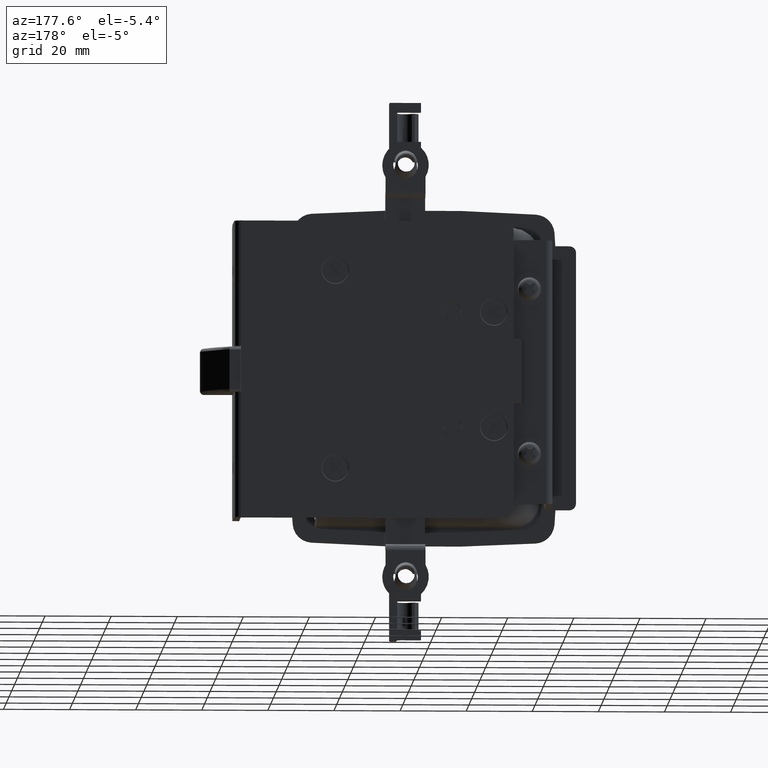
[diagram: clean part render]
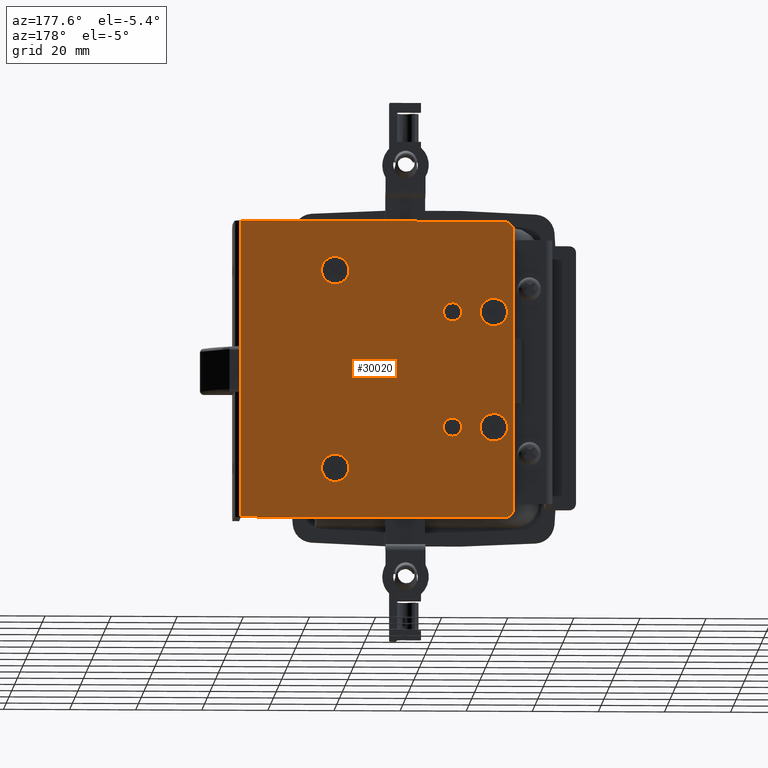
[diagram: same view with one face highlighted and labeled with its STEP entity id]
A machine part, auxiliary view. The second image highlights one B-rep face of the part: STEP entity #30020.
In plain terms, the highlighted face is a freeform B-spline surface patch.
Its self-contained STEP definition (entity closure, byte-faithful):
#23505=CARTESIAN_POINT('',(-5.472486631501899,-4.510281E-017,-19.357573613057092));
#23506=VERTEX_POINT('',#23505);
#23512=CARTESIAN_POINT('',(-7.499999999999770,0.0,-20.249700000000001));
#23513=VERTEX_POINT('',#23512);
#23514=CARTESIAN_POINT('',(-5.472486631501899,-4.510281E-017,-19.357573613057092));
#23515=CARTESIAN_POINT('',(-5.680941984797982,-4.046564E-017,-19.585330832700819));
#23516=CARTESIAN_POINT('',(-6.118546320677543,-3.073097E-017,-19.925035389163241));
#23517=CARTESIAN_POINT('',(-6.835059751756681,-1.479185E-017,-20.196860414906912));
#23518=CARTESIAN_POINT('',(-7.286263966420726,-4.754640E-018,-20.249735390223321));
#23519=CARTESIAN_POINT('',(-7.499999999999770,0.0,-20.249700000000001));
#23520=B_SPLINE_CURVE_WITH_KNOTS('',3,(#23514,#23515,#23516,#23517,#23518,#23519),.UNSPECIFIED.,.F.,.U.,(4,1,1,4),(0.000000062799684,0.926225635221077,1.638677312844255,2.279900507934246),.UNSPECIFIED.);
#23521=EDGE_CURVE('',#23506,#23513,#23520,.T.);
#23523=CARTESIAN_POINT('',(-10.249999999997520,0.0,-17.499696480036189));
#23524=VERTEX_POINT('',#23523);
#23525=CARTESIAN_POINT('',(-7.499999999999770,0.0,-20.249700000000001));
#23526=CARTESIAN_POINT('',(-7.860035991868466,0.0,-20.250074583768519));
#23527=CARTESIAN_POINT('',(-8.467178875843493,0.0,-20.128651152216069));
#23528=CARTESIAN_POINT('',(-9.192947344478831,0.0,-19.705569581635402));
#23529=CARTESIAN_POINT('',(-9.705862296805305,0.0,-19.192636372744200));
#23530=CARTESIAN_POINT('',(-10.128996501319580,0.0,-18.466892904406219));
#23531=CARTESIAN_POINT('',(-10.250331783588470,0.0,-17.859719650200908));
#23532=CARTESIAN_POINT('',(-10.249999999997520,0.0,-17.499696480036189));
#23533=B_SPLINE_CURVE_WITH_KNOTS('',3,(#23525,#23526,#23527,#23528,#23529,#23530,#23531,#23532),.UNSPECIFIED.,.F.,.U.,(4,1,1,1,1,4),(0.000000283196409,1.079950282336486,1.822422684277389,2.497377873439771,3.239850283296648,4.319800280899330),.UNSPECIFIED.);
#23534=EDGE_CURVE('',#23513,#23524,#23533,.T.);
#23536=CARTESIAN_POINT('',(-7.499999999999770,0.0,-14.749700000000001));
#23537=VERTEX_POINT('',#23536);
#23538=CARTESIAN_POINT('',(-10.249999999997520,0.0,-17.499696480036189));
#23539=CARTESIAN_POINT('',(-10.250330896217660,0.0,-17.139664854094839));
#23540=CARTESIAN_POINT('',(-10.137974284353000,0.0,-16.577488721556971));
#23541=CARTESIAN_POINT('',(-9.777590385866075,0.0,-15.923146016261100));
#23542=CARTESIAN_POINT('',(-9.334691406532068,0.0,-15.409515099027180));
#23543=CARTESIAN_POINT('',(-8.602025208140598,0.0,-14.906638540702380));
#23544=CARTESIAN_POINT('',(-7.905061262308764,0.0,-14.749094515283479));
#23545=CARTESIAN_POINT('',(-7.499999999999770,0.0,-14.749700000000001));
#23546=B_SPLINE_CURVE_WITH_KNOTS('',3,(#23538,#23539,#23540,#23541,#23542,#23543,#23544,#23545),.UNSPECIFIED.,.F.,.U.,(4,1,1,1,1,4),(0.000000288013817,1.079949294540860,1.687458690028251,2.227355565950611,3.104851869589282,4.319796312980730),.UNSPECIFIED.);
#23547=EDGE_CURVE('',#23524,#23537,#23546,.T.);
#23549=CARTESIAN_POINT('',(-5.529210470753685,-4.259142E-017,-15.581762620091441));
#23550=VERTEX_POINT('',#23549);
#23551=CARTESIAN_POINT('',(-7.499999999999770,0.0,-14.749700000000001));
#23552=CARTESIAN_POINT('',(-7.202430622155690,-6.430876E-018,-14.749542032343010));
#23553=CARTESIAN_POINT('',(-6.721909589065780,-1.681558E-017,-14.828490905933361));
#23554=CARTESIAN_POINT('',(-6.051169448850877,-3.131118E-017,-15.131686121267210));
#23555=CARTESIAN_POINT('',(-5.704738513070666,-3.879803E-017,-15.401262920871110));
#23556=CARTESIAN_POINT('',(-5.529210470753685,-4.259142E-017,-15.581762620091441));
#23557=B_SPLINE_CURVE_WITH_KNOTS('',3,(#23551,#23552,#23553,#23554,#23555,#23556),.UNSPECIFIED.,.F.,.U.,(4,1,1,4),(0.000000074838097,0.892662888378631,1.441958870254471,2.197274934110382),.UNSPECIFIED.);
#23558=EDGE_CURVE('',#23537,#23550,#23557,.T.);
#23593=CARTESIAN_POINT('',(-4.750000000002022,0.0,-17.499703519963809));
#23594=VERTEX_POINT('',#23593);
#23595=CARTESIAN_POINT('',(-5.529210470753685,-4.259142E-017,-15.581762620091441));
#23596=CARTESIAN_POINT('',(-5.328640277402249,-3.801901E-017,-15.787663929636359));
#23597=CARTESIAN_POINT('',(-5.057649333791258,-2.949162E-017,-16.171662160821139));
#23598=CARTESIAN_POINT('',(-4.806115814134096,-1.472821E-017,-16.836475496202851));
#23599=CARTESIAN_POINT('',(-4.749915092741254,-5.400935E-018,-17.256493299540232));
#23600=CARTESIAN_POINT('',(-4.750000000002022,0.0,-17.499703519963809));
#23601=B_SPLINE_CURVE_WITH_KNOTS('',3,(#23595,#23596,#23597,#23598,#23599,#23600),.UNSPECIFIED.,.F.,.U.,(4,1,1,4),(0.000000063100278,0.862294271851819,1.392905366026415,2.122526288423669),.UNSPECIFIED.);
#23602=EDGE_CURVE('',#23550,#23594,#23601,.T.);
#23604=CARTESIAN_POINT('',(-4.750000000002022,0.0,-17.499703519963809));
#23605=CARTESIAN_POINT('',(-4.749609137533909,-8.770322E-018,-17.860969840347220));
#23606=CARTESIAN_POINT('',(-4.886041539235610,-2.526955E-017,-18.540604634061278));
#23607=CARTESIAN_POINT('',(-5.256991006620507,-3.940064E-017,-19.122690728435870));
#23608=CARTESIAN_POINT('',(-5.472486631501899,-4.510281E-017,-19.357573613057092));
#23609=B_SPLINE_CURVE_WITH_KNOTS('',3,(#23604,#23605,#23606,#23607,#23608),.UNSPECIFIED.,.F.,.U.,(4,1,4),(0.000000069791588,1.083674423462897,2.039895959424957),.UNSPECIFIED.);
#23610=EDGE_CURVE('',#23594,#23506,#23609,.T.);
#23699=CARTESIAN_POINT('',(-5.472486631501900,-4.510281E-017,15.642126386942920));
#23700=VERTEX_POINT('',#23699);
#23706=CARTESIAN_POINT('',(-7.499999999999770,0.0,14.750000000000000));
#23707=VERTEX_POINT('',#23706);
#23708=CARTESIAN_POINT('',(-5.472486631501900,-4.510281E-017,15.642126386942920));
#23709=CARTESIAN_POINT('',(-5.744831175569122,-3.904440E-017,15.343941314839331));
#23710=CARTESIAN_POINT('',(-6.384111851932845,-2.482336E-017,14.899891189947979));
#23711=CARTESIAN_POINT('',(-7.143715967153645,-7.925675E-018,14.749623576210601));
#23712=CARTESIAN_POINT('',(-7.499999999999770,0.0,14.750000000000000));
#23713=B_SPLINE_CURVE_WITH_KNOTS('',3,(#23708,#23709,#23710,#23711,#23712),.UNSPECIFIED.,.F.,.U.,(4,1,4),(0.000000062799576,1.211185354845015,2.279900507934234),.UNSPECIFIED.);
#23714=EDGE_CURVE('',#23700,#23707,#23713,.T.);
#23716=CARTESIAN_POINT('',(-10.249999999997520,0.0,17.500003519963808));
#23717=VERTEX_POINT('',#23716);
#23718=CARTESIAN_POINT('',(-7.499999999999770,0.0,14.750000000000000));
#23719=CARTESIAN_POINT('',(-7.860029752854908,0.0,14.749680237382730));
#23720=CARTESIAN_POINT('',(-8.422190272930868,0.0,14.862035356169050));
#23721=CARTESIAN_POINT('',(-9.195662890498952,0.0,15.287806628945740));
#23722=CARTESIAN_POINT('',(-9.712235413413785,0.0,15.804312088907251));
#23723=CARTESIAN_POINT('',(-10.137904777721911,0.0,16.577828111223109));
#23724=CARTESIAN_POINT('',(-10.250380217828789,0.0,17.139962327563008));
#23725=CARTESIAN_POINT('',(-10.249999999997520,0.0,17.500003519963808));
#23726=B_SPLINE_CURVE_WITH_KNOTS('',3,(#23718,#23719,#23720,#23721,#23722,#23723,#23724,#23725),.UNSPECIFIED.,.F.,.U.,(4,1,1,1,1,4),(0.000000283195729,1.079950282336099,1.687460235529490,2.632340329644946,3.239850283296582,4.319800280899344),.UNSPECIFIED.);
#23727=EDGE_CURVE('',#23707,#23717,#23726,.T.);
#23729=CARTESIAN_POINT('',(-7.499999999999770,0.0,20.250000000000000));
#23730=VERTEX_POINT('',#23729);
#23731=CARTESIAN_POINT('',(-10.249999999997520,0.0,17.500003519963808));
#23732=CARTESIAN_POINT('',(-10.250370862797890,0.0,17.860016034753428));
#23733=CARTESIAN_POINT('',(-10.120011878550750,0.0,18.512231172253600));
#23734=CARTESIAN_POINT('',(-9.606067841612504,0.0,19.346439696946149));
#23735=CARTESIAN_POINT('',(-8.952985952855872,0.0,19.882321722834451));
#23736=CARTESIAN_POINT('',(-8.219899137543594,0.0,20.185765916516200));
#23737=CARTESIAN_POINT('',(-7.747485518898707,0.0,20.250087739473329));
#23738=CARTESIAN_POINT('',(-7.499999999999770,0.0,20.250000000000000));
#23739=B_SPLINE_CURVE_WITH_KNOTS('',3,(#23731,#23732,#23733,#23734,#23735,#23736,#23737,#23738),.UNSPECIFIED.,.F.,.U.,(4,1,1,1,1,4),(0.000000288011730,1.079949294539246,1.957458397787989,2.902342867264029,3.577351743982170,4.319796312980733),.UNSPECIFIED.);
#23740=EDGE_CURVE('',#23717,#23730,#23739,.T.);
#23742=CARTESIAN_POINT('',(-5.529210470753686,-4.259142E-017,19.417937379908569));
#23743=VERTEX_POINT('',#23742);
#23744=CARTESIAN_POINT('',(-7.499999999999770,0.0,20.250000000000000));
#23745=CARTESIAN_POINT('',(-7.202434918576564,-6.430783E-018,20.250170789796140));
#23746=CARTESIAN_POINT('',(-6.676123271580525,-1.780509E-017,20.163709400202318));
#23747=CARTESIAN_POINT('',(-6.011314409270401,-3.217251E-017,19.842985666964179));
#23748=CARTESIAN_POINT('',(-5.672854102828280,-3.948709E-017,19.565581875310091));
#23749=CARTESIAN_POINT('',(-5.529210470753686,-4.259142E-017,19.417937379908569));
#23750=B_SPLINE_CURVE_WITH_KNOTS('',3,(#23744,#23745,#23746,#23747,#23748,#23749),.UNSPECIFIED.,.F.,.U.,(4,1,1,4),(0.000000074837823,0.892662888378472,1.579287328143697,2.197274934110374),.UNSPECIFIED.);
#23751=EDGE_CURVE('',#23730,#23743,#23750,.T.);
#23786=CARTESIAN_POINT('',(-4.750000000002022,0.0,17.499996480036181));
#23787=VERTEX_POINT('',#23786);
#23788=CARTESIAN_POINT('',(-5.529210470753686,-4.259142E-017,19.417937379908569));
#23789=CARTESIAN_POINT('',(-5.390425771269005,-3.942497E-017,19.275348250870959));
#23790=CARTESIAN_POINT('',(-5.102813540110521,-3.125295E-017,18.907352608330420));
#23791=CARTESIAN_POINT('',(-4.817838239538065,-1.669295E-017,18.251698814652912));
#23792=CARTESIAN_POINT('',(-4.749943413434801,-5.400784E-018,17.743199873075810));
#23793=CARTESIAN_POINT('',(-4.750000000002022,0.0,17.499996480036181));
#23794=B_SPLINE_CURVE_WITH_KNOTS('',3,(#23788,#23789,#23790,#23791,#23792,#23793),.UNSPECIFIED.,.F.,.U.,(4,1,1,4),(0.000000063100825,0.596964214172490,1.392905366026495,2.122526288423670),.UNSPECIFIED.);
#23795=EDGE_CURVE('',#23743,#23787,#23794,.T.);
#23797=CARTESIAN_POINT('',(-4.750000000002022,0.0,17.499996480036181));
#23798=CARTESIAN_POINT('',(-4.749786873970688,-7.738461E-018,17.181234467804789));
#23799=CARTESIAN_POINT('',(-4.869597758459131,-2.424082E-017,16.501470938452400));
#23800=CARTESIAN_POINT('',(-5.228113096630768,-3.864311E-017,15.908213669309060));
#23801=CARTESIAN_POINT('',(-5.472486631501900,-4.510281E-017,15.642126386942920));
#23802=B_SPLINE_CURVE_WITH_KNOTS('',3,(#23797,#23798,#23799,#23800,#23801),.UNSPECIFIED.,.F.,.U.,(4,1,4),(0.000000069791625,0.956221605687420,2.039895959424958),.UNSPECIFIED.);
#23803=EDGE_CURVE('',#23787,#23700,#23802,.T.);
#24054=CARTESIAN_POINT('',(-16.837793538553509,0.000000355834500,-20.173990557708780));
#24055=VERTEX_POINT('',#24054);
#24061=CARTESIAN_POINT('',(-20.0,0.0,-21.641121356237448));
#24062=VERTEX_POINT('',#24061);
#24063=CARTESIAN_POINT('',(-16.837793538553509,0.000000355834500,-20.173990557708780));
#24064=CARTESIAN_POINT('',(-17.043475925290370,0.000000332689620,-20.417270831566949));
#24065=CARTESIAN_POINT('',(-17.566352880573991,0.000000273851697,-20.907711086382431));
#24066=CARTESIAN_POINT('',(-18.632125589046051,0.000000153923190,-21.483933512942649));
#24067=CARTESIAN_POINT('',(-19.512738238137221,0.000000054830242,-21.641421612022789));
#24068=CARTESIAN_POINT('',(-20.0,0.0,-21.641121356237448));
#24069=B_SPLINE_CURVE_WITH_KNOTS('',3,(#24063,#24064,#24065,#24066,#24067,#24068),.UNSPECIFIED.,.F.,.U.,(4,1,1,4),(0.000000069344123,0.955746239999873,2.136358682216986,3.598101684154795),.UNSPECIFIED.);
#24070=EDGE_CURVE('',#24055,#24062,#24069,.T.);
#24072=CARTESIAN_POINT('',(-24.141421356236439,0.0,-17.499697113255021));
#24073=VERTEX_POINT('',#24072);
#24074=CARTESIAN_POINT('',(-20.0,0.0,-21.641121356237448));
#24075=CARTESIAN_POINT('',(-20.271046659658069,0.0,-21.641151133581531));
#24076=CARTESIAN_POINT('',(-20.847038446762848,0.0,-21.584394605359609));
#24077=CARTESIAN_POINT('',(-21.724489121853090,0.0,-21.306487858241510));
#24078=CARTESIAN_POINT('',(-22.544358668697260,0.0,-20.815068530628839));
#24079=CARTESIAN_POINT('',(-23.300757325453510,0.0,-20.077055784765051));
#24080=CARTESIAN_POINT('',(-23.952436748472849,0.0,-18.990190506331391));
#24081=CARTESIAN_POINT('',(-24.141967877029071,0.0,-18.041869237154110));
#24082=CARTESIAN_POINT('',(-24.141421356236439,0.0,-17.499697113255021));
#24083=B_SPLINE_CURVE_WITH_KNOTS('',3,(#24074,#24075,#24076,#24077,#24078,#24079,#24080,#24081,#24082),.UNSPECIFIED.,.F.,.U.,(4,1,1,1,1,1,4),(0.000000059215614,0.813161329666794,1.728026598160288,2.744517122598683,3.659329210057929,4.879120759079526,6.505494325786123),.UNSPECIFIED.);
#24084=EDGE_CURVE('',#24062,#24073,#24083,.T.);
#24086=CARTESIAN_POINT('',(-20.0,0.0,-13.358278643762560));
#24087=VERTEX_POINT('',#24086);
#24088=CARTESIAN_POINT('',(-24.141421356236439,0.0,-17.499697113255021));
#24089=CARTESIAN_POINT('',(-24.141799924886389,0.0,-17.025291532700891));
#24090=CARTESIAN_POINT('',(-24.017752869802109,0.0,-16.314027649558280));
#24091=CARTESIAN_POINT('',(-23.606977624971829,0.0,-15.417441961625640));
#24092=CARTESIAN_POINT('',(-23.058285158853302,0.0,-14.637820110189351));
#24093=CARTESIAN_POINT('',(-22.296821849944390,0.0,-13.997262209620519));
#24094=CARTESIAN_POINT('',(-21.219541302294960,0.0,-13.487852371726291));
#24095=CARTESIAN_POINT('',(-20.474399623525532,0.0,-13.357907965416761));
#24096=CARTESIAN_POINT('',(-20.0,0.0,-13.358278643762560));
#24097=B_SPLINE_CURVE_WITH_KNOTS('',3,(#24088,#24089,#24090,#24091,#24092,#24093,#24094,#24095,#24096),.UNSPECIFIED.,.F.,.U.,(4,1,1,1,1,1,4),(0.000000063176129,1.423068077874243,2.134630800851141,2.947806696279451,4.269209073732250,5.082423403093696,6.505491071670515),.UNSPECIFIED.);
#24098=EDGE_CURVE('',#24073,#24087,#24097,.T.);
#24100=CARTESIAN_POINT('',(-17.149234403702529,-0.000000360348654,-14.495619872784051));
#24101=VERTEX_POINT('',#24100);
#24102=CARTESIAN_POINT('',(-20.0,0.0,-13.358278643762560));
#24103=CARTESIAN_POINT('',(-19.574183368412619,-0.000000053824997,-13.358067786599319));
#24104=CARTESIAN_POINT('',(-18.886531466993759,-0.000000140747064,-13.465332282638830));
#24105=CARTESIAN_POINT('',(-17.918201809062172,-0.000000263147969,-13.878589563789600));
#24106=CARTESIAN_POINT('',(-17.410504274533132,-0.000000327323053,-14.247532700335590));
#24107=CARTESIAN_POINT('',(-17.149234403702529,-0.000000360348654,-14.495619872784051));
#24108=B_SPLINE_CURVE_WITH_KNOTS('',3,(#24102,#24103,#24104,#24105,#24106,#24107),.UNSPECIFIED.,.F.,.U.,(4,1,1,4),(0.000000038198557,1.277390483149807,2.063446762963001,3.144315888682139),.UNSPECIFIED.);
#24109=EDGE_CURVE('',#24087,#24101,#24108,.T.);
#24189=CARTESIAN_POINT('',(-15.858578643763559,0.0,-17.499702886745020));
#24190=VERTEX_POINT('',#24189);
#24191=CARTESIAN_POINT('',(-17.149234403702529,-0.000000360348654,-14.495619872784051));
#24192=CARTESIAN_POINT('',(-16.920620481515670,-0.000000334335722,-14.712479407500320));
#24193=CARTESIAN_POINT('',(-16.535955116945850,-0.000000279247614,-15.171727125964930));
#24194=CARTESIAN_POINT('',(-16.013904805864680,-0.000000159549845,-16.169599750267370));
#24195=CARTESIAN_POINT('',(-15.858037558604501,-0.000000063007471,-16.974434889024280));
#24196=CARTESIAN_POINT('',(-15.858578643763559,0.0,-17.499702886745020));
#24197=B_SPLINE_CURVE_WITH_KNOTS('',3,(#24191,#24192,#24193,#24194,#24195,#24196),.UNSPECIFIED.,.F.,.U.,(4,1,1,4),(0.000000029470792,0.945331781962312,1.785625904099920,3.361179390256538),.UNSPECIFIED.);
#24198=EDGE_CURVE('',#24101,#24190,#24197,.T.);
#24200=CARTESIAN_POINT('',(-15.858578643763559,0.0,-17.499702886745020));
#24201=CARTESIAN_POINT('',(-15.858302288053100,0.000000060447070,-17.953995247166461));
#24202=CARTESIAN_POINT('',(-16.019686087109530,0.000000189365763,-18.922888706432019));
#24203=CARTESIAN_POINT('',(-16.504967366662541,0.000000303562061,-19.781135196730911));
#24204=CARTESIAN_POINT('',(-16.837793538553509,0.000000355834500,-20.173990557708780));
#24205=B_SPLINE_CURVE_WITH_KNOTS('',3,(#24200,#24201,#24202,#24203,#24204),.UNSPECIFIED.,.F.,.U.,(4,1,4),(0.000000041548930,1.362813405378358,2.907311632011159),.UNSPECIFIED.);
#24206=EDGE_CURVE('',#24190,#24055,#24205,.T.);
#24450=CARTESIAN_POINT('',(-16.837793538553498,0.000000355834502,14.825709442291220));
#24451=VERTEX_POINT('',#24450);
#24457=CARTESIAN_POINT('',(-20.0,0.0,13.358578643762559));
#24458=VERTEX_POINT('',#24457);
#24459=CARTESIAN_POINT('',(-16.837793538553498,0.000000355834502,14.825709442291220));
#24460=CARTESIAN_POINT('',(-17.200373976431329,0.000000315034311,14.395857899900710));
#24461=CARTESIAN_POINT('',(-17.833108605259799,0.000000243834402,13.900930840538260));
#24462=CARTESIAN_POINT('',(-18.950683776959028,0.000000118076704,13.454581862925661));
#24463=CARTESIAN_POINT('',(-19.587684685299351,0.000000046396722,13.358379713597911));
#24464=CARTESIAN_POINT('',(-20.0,0.0,13.358578643762559));
#24465=B_SPLINE_CURVE_WITH_KNOTS('',3,(#24459,#24460,#24461,#24462,#24463,#24464),.UNSPECIFIED.,.F.,.U.,(4,1,1,4),(0.000000069344731,1.686618161056720,2.361242533246235,3.598101684154802),.UNSPECIFIED.);
#24466=EDGE_CURVE('',#24451,#24458,#24465,.T.);
#24468=CARTESIAN_POINT('',(-24.141421356236439,0.0,17.500002886744969));
#24469=VERTEX_POINT('',#24468);
#24470=CARTESIAN_POINT('',(-20.0,0.0,13.358578643762559));
#24471=CARTESIAN_POINT('',(-20.406582380261209,0.0,13.358433963162391));
#24472=CARTESIAN_POINT('',(-21.253615205787121,0.0,13.484199448991941));
#24473=CARTESIAN_POINT('',(-22.302075486120859,0.0,13.995890579415260));
#24474=CARTESIAN_POINT('',(-23.068087705091880,0.0,14.673530048237019));
#24475=CARTESIAN_POINT('',(-23.615708481148090,0.0,15.411832675609141));
#24476=CARTESIAN_POINT('',(-24.030797990717879,0.0,16.348076851366550));
#24477=CARTESIAN_POINT('',(-24.141562875058469,0.0,17.093417130478262));
#24478=CARTESIAN_POINT('',(-24.141421356236439,0.0,17.500002886744969));
#24479=B_SPLINE_CURVE_WITH_KNOTS('',3,(#24470,#24471,#24472,#24473,#24474,#24475,#24476,#24477,#24478),.UNSPECIFIED.,.F.,.U.,(4,1,1,1,1,1,4),(0.000000059216819,1.219764219862762,2.541224897354151,3.456038952878642,4.269211207961163,5.285729554403877,6.505494325786125),.UNSPECIFIED.);
#24480=EDGE_CURVE('',#24458,#24469,#24479,.T.);
#24482=CARTESIAN_POINT('',(-20.0,0.0,21.641421356237451));
#24483=VERTEX_POINT('',#24482);
#24484=CARTESIAN_POINT('',(-24.141421356236439,0.0,17.500002886744969));
#24485=CARTESIAN_POINT('',(-24.141597038481368,0.0,17.906602364302550));
#24486=CARTESIAN_POINT('',(-24.025739598092962,0.0,18.685788281677269));
#24487=CARTESIAN_POINT('',(-23.570144099341061,0.0,19.680559724218099));
#24488=CARTESIAN_POINT('',(-22.973627809416090,0.0,20.425714051561251));
#24489=CARTESIAN_POINT('',(-22.263063093527371,0.0,21.008880815806268));
#24490=CARTESIAN_POINT('',(-21.287343671560581,0.0,21.500151218607229));
#24491=CARTESIAN_POINT('',(-20.474380870839330,0.0,21.641737057826688));
#24492=CARTESIAN_POINT('',(-20.0,0.0,21.641421356237451));
#24493=B_SPLINE_CURVE_WITH_KNOTS('',3,(#24484,#24485,#24486,#24487,#24488,#24489,#24490,#24491,#24492),.UNSPECIFIED.,.F.,.U.,(4,1,1,1,1,1,4),(0.000000063176384,1.219763613113898,2.337928871936088,3.252745561878694,4.065911982142430,5.082423403093321,6.505491071670552),.UNSPECIFIED.);
#24494=EDGE_CURVE('',#24469,#24483,#24493,.T.);
#24496=CARTESIAN_POINT('',(-17.149234403702529,-0.000000360348655,20.504080127215939));
#24497=VERTEX_POINT('',#24496);
#24498=CARTESIAN_POINT('',(-20.0,0.0,21.641421356237451));
#24499=CARTESIAN_POINT('',(-19.639710110666151,-0.000000045542144,21.641531608803700));
#24500=CARTESIAN_POINT('',(-19.017476942130031,-0.000000124195010,21.559672118105770));
#24501=CARTESIAN_POINT('',(-18.030597891695269,-0.000000248940636,21.192901592417961));
#24502=CARTESIAN_POINT('',(-17.457973796740440,-0.000000321322709,20.797333267431551));
#24503=CARTESIAN_POINT('',(-17.149234403702529,-0.000000360348655,20.504080127215939));
#24504=B_SPLINE_CURVE_WITH_KNOTS('',3,(#24498,#24499,#24500,#24501,#24502,#24503),.UNSPECIFIED.,.F.,.U.,(4,1,1,4),(0.000000038199560,1.080869164031172,1.866925443758565,3.144315888682149),.UNSPECIFIED.);
#24505=EDGE_CURVE('',#24483,#24497,#24504,.T.);
#24585=CARTESIAN_POINT('',(-15.858578643763559,0.0,17.499997113254970));
#24586=VERTEX_POINT('',#24585);
#24587=CARTESIAN_POINT('',(-17.149234403702529,-0.000000360348655,20.504080127215939));
#24588=CARTESIAN_POINT('',(-16.920629853708171,-0.000000334335463,20.287218423478979));
#24589=CARTESIAN_POINT('',(-16.535933865697508,-0.000000279247994,19.827976041212001));
#24590=CARTESIAN_POINT('',(-16.013923756470419,-0.000000159549896,18.830100673177270));
#24591=CARTESIAN_POINT('',(-15.858027937484520,-0.000000063007099,18.025262010518841));
#24592=CARTESIAN_POINT('',(-15.858578643763559,0.0,17.499997113254970));
#24593=B_SPLINE_CURVE_WITH_KNOTS('',3,(#24587,#24588,#24589,#24590,#24591,#24592),.UNSPECIFIED.,.F.,.U.,(4,1,1,4),(0.000000029470637,0.945331781962196,1.785625904099851,3.361179390256545),.UNSPECIFIED.);
#24594=EDGE_CURVE('',#24497,#24586,#24593,.T.);
#24596=CARTESIAN_POINT('',(-15.858578643763559,0.0,17.499997113254970));
#24597=CARTESIAN_POINT('',(-15.858127073048980,0.000000068509622,16.985110325453210));
#24598=CARTESIAN_POINT('',(-16.041799935912341,0.000000197400871,16.016423143537448));
#24599=CARTESIAN_POINT('',(-16.544225187003040,0.000000309703290,15.172410197777911));
#24600=CARTESIAN_POINT('',(-16.837793538553498,0.000000355834502,14.825709442291220));
#24601=B_SPLINE_CURVE_WITH_KNOTS('',3,(#24596,#24597,#24598,#24599,#24600),.UNSPECIFIED.,.F.,.U.,(4,1,4),(0.000000041549013,1.544498268206395,2.907311632011135),.UNSPECIFIED.);
#24602=EDGE_CURVE('',#24586,#24451,#24601,.T.);
#24843=CARTESIAN_POINT('',(31.162206461446502,0.000000355834503,-32.673990557708777));
#24844=VERTEX_POINT('',#24843);
#24850=CARTESIAN_POINT('',(28.0,0.0,-34.141121356237441));
#24851=VERTEX_POINT('',#24850);
#24852=CARTESIAN_POINT('',(31.162206461446502,0.000000355834503,-32.673990557708777));
#24853=CARTESIAN_POINT('',(30.799576342927342,0.000000315028721,-33.103780900050452));
#24854=CARTESIAN_POINT('',(30.166932409732890,0.000000243839018,-33.598825802258112));
#24855=CARTESIAN_POINT('',(29.049312403738739,0.000000118076275,-34.045100557618071));
#24856=CARTESIAN_POINT('',(28.412312777765120,0.000000046396437,-34.141333807886028));
#24857=CARTESIAN_POINT('',(28.0,0.0,-34.141121356237441));
#24858=B_SPLINE_CURVE_WITH_KNOTS('',3,(#24852,#24853,#24854,#24855,#24856,#24857),.UNSPECIFIED.,.F.,.U.,(4,1,1,4),(0.000000069345236,1.686618161057139,2.361242533246359,3.598101684154802),.UNSPECIFIED.);
#24859=EDGE_CURVE('',#24844,#24851,#24858,.T.);
#24861=CARTESIAN_POINT('',(23.858578643763568,0.0,-29.999697113255031));
#24862=VERTEX_POINT('',#24861);
#24863=CARTESIAN_POINT('',(28.0,0.0,-34.141121356237441));
#24864=CARTESIAN_POINT('',(27.728951718879848,0.0,-34.141150507635757));
#24865=CARTESIAN_POINT('',(27.152960702678929,0.0,-34.084398347098997));
#24866=CARTESIAN_POINT('',(26.405522814961760,0.0,-33.847625863464401));
#24867=CARTESIAN_POINT('',(25.686411290291218,0.0,-33.463232273470261));
#24868=CARTESIAN_POINT('',(25.074283019174331,0.0,-32.973341815498571));
#24869=CARTESIAN_POINT('',(24.534376191292889,0.0,-32.315379369364379));
#24870=CARTESIAN_POINT('',(24.020544014126390,0.0,-31.354617087743762));
#24871=CARTESIAN_POINT('',(23.858056969980201,0.0,-30.541905132257671));
#24872=CARTESIAN_POINT('',(23.858578643763568,0.0,-29.999697113255031));
#24873=B_SPLINE_CURVE_WITH_KNOTS('',3,(#24863,#24864,#24865,#24866,#24867,#24868,#24869,#24870,#24871,#24872),.UNSPECIFIED.,.F.,.U.,(4,1,1,1,1,1,1,4),(0.000000059217727,0.813161329668515,1.728026598161534,2.337930037347485,3.252747193667663,4.065914013008088,4.879120759079846,6.505494325786113),.UNSPECIFIED.);
#24874=EDGE_CURVE('',#24851,#24862,#24873,.T.);
#24876=CARTESIAN_POINT('',(28.0,0.0,-25.858278643762560));
#24877=VERTEX_POINT('',#24876);
#24878=CARTESIAN_POINT('',(23.858578643763568,0.0,-29.999697113255031));
#24879=CARTESIAN_POINT('',(23.858550118023601,0.0,-29.728648539828171));
#24880=CARTESIAN_POINT('',(23.915297060301430,0.0,-29.152659077850991));
#24881=CARTESIAN_POINT('',(24.172663162257251,0.0,-28.340221140863630));
#24882=CARTESIAN_POINT('',(24.608968272826040,0.0,-27.570018314283729));
#24883=CARTESIAN_POINT('',(25.173506577042410,0.0,-26.931597831325401));
#24884=CARTESIAN_POINT('',(25.911829928469238,0.0,-26.383991196603869));
#24885=CARTESIAN_POINT('',(26.848074984480519,0.0,-25.968901527924451));
#24886=CARTESIAN_POINT('',(27.593414406704529,0.0,-25.858137320663261));
#24887=CARTESIAN_POINT('',(28.0,0.0,-25.858278643762560));
#24888=B_SPLINE_CURVE_WITH_KNOTS('',3,(#24878,#24879,#24880,#24881,#24882,#24883,#24884,#24885,#24886,#24887),.UNSPECIFIED.,.F.,.U.,(4,1,1,1,1,1,1,4),(0.000000063172907,0.813160926603167,1.728025737059800,2.541223630867493,3.456037232050444,4.269209073730974,5.285726910204299,6.505491071670572),.UNSPECIFIED.);
#24889=EDGE_CURVE('',#24862,#24877,#24888,.T.);
#24891=CARTESIAN_POINT('',(30.850765596297460,-0.000000360348655,-26.995619872784061));
#24892=VERTEX_POINT('',#24891);
#24893=CARTESIAN_POINT('',(28.0,0.0,-25.858278643762560));
#24894=CARTESIAN_POINT('',(28.425818810559509,-0.000000053825273,-25.858041464925510));
#24895=CARTESIAN_POINT('',(29.047964967678119,-0.000000132467141,-25.955142118607220));
#24896=CARTESIAN_POINT('',(30.023931450108702,-0.000000255833373,-26.344510183280779));
#24897=CARTESIAN_POINT('',(30.542033459450199,-0.000000321323626,-26.702347529335260));
#24898=CARTESIAN_POINT('',(30.850765596297460,-0.000000360348655,-26.995619872784061));
#24899=B_SPLINE_CURVE_WITH_KNOTS('',3,(#24893,#24894,#24895,#24896,#24897,#24898),.UNSPECIFIED.,.F.,.U.,(4,1,1,4),(0.000000038199117,1.277390483149943,1.866925443758411,3.144315888682135),.UNSPECIFIED.);
#24900=EDGE_CURVE('',#24877,#24892,#24899,.T.);
#24982=CARTESIAN_POINT('',(32.141421356236442,0.0,-29.999702886745030));
#24983=VERTEX_POINT('',#24982);
#24984=CARTESIAN_POINT('',(30.850765596297460,-0.000000360348655,-26.995619872784061));
#24985=CARTESIAN_POINT('',(31.181160513432719,-0.000000322789500,-27.308735707940482));
#24986=CARTESIAN_POINT('',(31.629782117153731,-0.000000251412695,-27.903775796002961));
#24987=CARTESIAN_POINT('',(32.047945897207683,-0.000000125983529,-28.949428700161111));
#24988=CARTESIAN_POINT('',(32.141549283190869,-0.000000046198300,-29.614566199878219));
#24989=CARTESIAN_POINT('',(32.141421356236442,0.0,-29.999702886745030));
#24990=B_SPLINE_CURVE_WITH_KNOTS('',3,(#24984,#24985,#24986,#24987,#24988,#24989),.UNSPECIFIED.,.F.,.U.,(4,1,1,4),(0.000000029471242,1.365480021990412,2.205773537283504,3.361179390256551),.UNSPECIFIED.);
#24991=EDGE_CURVE('',#24892,#24983,#24990,.T.);
#24993=CARTESIAN_POINT('',(32.141421356236442,0.0,-29.999702886745030));
#24994=CARTESIAN_POINT('',(32.141478239194122,0.000000044324875,-30.332828245348772));
#24995=CARTESIAN_POINT('',(32.056988286703707,0.000000137003055,-31.029354729185599));
#24996=CARTESIAN_POINT('',(31.700844956528780,0.000000258124531,-31.939647748783170));
#24997=CARTESIAN_POINT('',(31.338217920492621,0.000000328145515,-32.465892990134321));
#24998=CARTESIAN_POINT('',(31.162206461446502,0.000000355834503,-32.673990557708777));
#24999=B_SPLINE_CURVE_WITH_KNOTS('',3,(#24993,#24994,#24995,#24996,#24997,#24998),.UNSPECIFIED.,.F.,.U.,(4,1,1,4),(0.000000041550004,0.999398256701068,2.089629095819021,2.907311632011123),.UNSPECIFIED.);
#25000=EDGE_CURVE('',#24983,#24844,#24999,.T.);
#25245=CARTESIAN_POINT('',(31.162206461446502,0.000000355834502,27.325709442291220));
#25246=VERTEX_POINT('',#25245);
#25252=CARTESIAN_POINT('',(28.0,0.0,25.858578643762559));
#25253=VERTEX_POINT('',#25252);
#25254=CARTESIAN_POINT('',(31.162206461446502,0.000000355834502,27.325709442291220));
#25255=CARTESIAN_POINT('',(30.956535067218962,0.000000332690859,27.082407070133389));
#25256=CARTESIAN_POINT('',(30.543676779770092,0.000000286233038,26.695313515797469));
#25257=CARTESIAN_POINT('',(29.789775780658271,0.000000201398606,26.233270123356760));
#25258=CARTESIAN_POINT('',(28.955725551898482,0.000000107545200,25.932427869344671));
#25259=CARTESIAN_POINT('',(28.318582194732080,0.000000035849189,25.858520815519661));
#25260=CARTESIAN_POINT('',(28.0,0.0,25.858578643762559));
#25261=B_SPLINE_CURVE_WITH_KNOTS('',3,(#25254,#25255,#25256,#25257,#25258,#25259,#25260),.UNSPECIFIED.,.F.,.U.,(4,1,1,1,4),(0.000000069343453,0.955746239999491,1.686618161056239,2.642355513497417,3.598101684154824),.UNSPECIFIED.);
#25262=EDGE_CURVE('',#25246,#25253,#25261,.T.);
#25264=CARTESIAN_POINT('',(23.858578643763568,0.0,30.000002886744969));
#25265=VERTEX_POINT('',#25264);
#25266=CARTESIAN_POINT('',(28.0,0.0,25.858578643762559));
#25267=CARTESIAN_POINT('',(27.593404820968100,0.0,25.858421894594109));
#25268=CARTESIAN_POINT('',(26.881982852893699,0.0,25.964213003583659));
#25269=CARTESIAN_POINT('',(25.973367760511099,0.0,26.353763299251440));
#25270=CARTESIAN_POINT('',(25.193943547702499,0.0,26.902624263327880));
#25271=CARTESIAN_POINT('',(24.537098640150820,0.0,27.645405315222700));
#25272=CARTESIAN_POINT('',(23.999858972318851,0.0,28.712685424480519));
#25273=CARTESIAN_POINT('',(23.858285075978628,0.0,29.525618214658191));
#25274=CARTESIAN_POINT('',(23.858578643763568,0.0,30.000002886744969));
#25275=B_SPLINE_CURVE_WITH_KNOTS('',3,(#25266,#25267,#25268,#25269,#25270,#25271,#25272,#25273,#25274),.UNSPECIFIED.,.F.,.U.,(4,1,1,1,1,1,4),(0.000000059216246,1.219764219862123,2.134631864980103,2.947808164185211,4.065914013007712,5.082425946202845,6.505494325786113),.UNSPECIFIED.);
#25276=EDGE_CURVE('',#25253,#25265,#25275,.T.);
#25278=CARTESIAN_POINT('',(28.0,0.0,34.141421356237437));
#25279=VERTEX_POINT('',#25278);
#25280=CARTESIAN_POINT('',(23.858578643763568,0.0,30.000002886744969));
#25281=CARTESIAN_POINT('',(23.858387984806271,0.0,30.406605075826921));
#25282=CARTESIAN_POINT('',(23.954188173942459,0.0,31.050245562850030));
#25283=CARTESIAN_POINT('',(24.320408719205350,0.0,31.965940480390280));
#25284=CARTESIAN_POINT('',(24.889181532024761,0.0,32.817689410395822));
#25285=CARTESIAN_POINT('',(25.703182616212061,0.0,33.502416983646228));
#25286=CARTESIAN_POINT('',(26.780448445671460,0.0,34.011932950129669));
#25287=CARTESIAN_POINT('',(27.525613298430571,0.0,34.141702273280288));
#25288=CARTESIAN_POINT('',(28.0,0.0,34.141421356237437));
#25289=B_SPLINE_CURVE_WITH_KNOTS('',3,(#25280,#25281,#25282,#25283,#25284,#25285,#25286,#25287,#25288),.UNSPECIFIED.,.F.,.U.,(4,1,1,1,1,1,4),(0.000000063177841,1.219763613115496,1.931329508962936,2.947806696280091,4.269209073732498,5.082423403093769,6.505491071670490),.UNSPECIFIED.);
#25290=EDGE_CURVE('',#25265,#25279,#25289,.T.);
#25292=CARTESIAN_POINT('',(30.850765596297471,-0.000000360348654,33.004080127215943));
#25293=VERTEX_POINT('',#25292);
#25294=CARTESIAN_POINT('',(28.0,0.0,34.141421356237437));
#25295=CARTESIAN_POINT('',(28.360289894327419,-0.000000045542144,34.141529543549709));
#25296=CARTESIAN_POINT('',(28.982525595641089,-0.000000124195331,34.059678344161163));
#25297=CARTESIAN_POINT('',(29.969393075991601,-0.000000248939494,33.692887584979353));
#25298=CARTESIAN_POINT('',(30.542036427229949,-0.000000321324001,33.297346535973993));
#25299=CARTESIAN_POINT('',(30.850765596297471,-0.000000360348654,33.004080127215943));
#25300=B_SPLINE_CURVE_WITH_KNOTS('',3,(#25294,#25295,#25296,#25297,#25298,#25299),.UNSPECIFIED.,.F.,.U.,(4,1,1,4),(0.000000038199285,1.080869164030854,1.866925443758408,3.144315888682153),.UNSPECIFIED.);
#25301=EDGE_CURVE('',#25279,#25293,#25300,.T.);
#25381=CARTESIAN_POINT('',(32.141421356236442,0.0,29.999997113254970));
#25382=VERTEX_POINT('',#25381);
#25383=CARTESIAN_POINT('',(30.850765596297471,-0.000000360348654,33.004080127215943));
#25384=CARTESIAN_POINT('',(31.079385812766919,-0.000000334335963,32.787222602551523));
#25385=CARTESIAN_POINT('',(31.464037606576870,-0.000000279247175,32.327969214339561));
#25386=CARTESIAN_POINT('',(31.986100373465909,-0.000000159550246,31.330103593454730));
#25387=CARTESIAN_POINT('',(32.141960405714457,-0.000000063007195,30.525262814343570));
#25388=CARTESIAN_POINT('',(32.141421356236442,0.0,29.999997113254970));
#25389=B_SPLINE_CURVE_WITH_KNOTS('',3,(#25383,#25384,#25385,#25386,#25387,#25388),.UNSPECIFIED.,.F.,.U.,(4,1,1,4),(0.000000029472028,0.945331781963062,1.785625904100411,3.361179390256528),.UNSPECIFIED.);
#25390=EDGE_CURVE('',#25293,#25382,#25389,.T.);
#25392=CARTESIAN_POINT('',(32.141421356236442,0.0,29.999997113254970));
#25393=CARTESIAN_POINT('',(32.141709018349488,0.000000060448200,29.545696265252001));
#25394=CARTESIAN_POINT('',(31.980259789825212,0.000000189361912,28.576840246970949));
#25395=CARTESIAN_POINT('',(31.495078627595628,0.000000303565571,27.718538445216829));
#25396=CARTESIAN_POINT('',(31.162206461446502,0.000000355834502,27.325709442291220));
#25397=B_SPLINE_CURVE_WITH_KNOTS('',3,(#25392,#25393,#25394,#25395,#25396),.UNSPECIFIED.,.F.,.U.,(4,1,4),(0.000000041548819,1.362813405378295,2.907311632011153),.UNSPECIFIED.);
#25398=EDGE_CURVE('',#25382,#25246,#25397,.T.);
#26516=CARTESIAN_POINT('',(56.500000000000000,0.0,7.0));
#26517=VERTEX_POINT('',#26516);
#26530=CARTESIAN_POINT('',(56.500000000000000,0.0,-6.999699999999921));
#26531=VERTEX_POINT('',#26530);
#26537=CARTESIAN_POINT('',(56.500000000000000,0.0,7.0));
#26538=CARTESIAN_POINT('',(56.500000000000000,0.0,-6.999699999999921));
#26539=QUASI_UNIFORM_CURVE('',1,(#26537,#26538),.UNSPECIFIED.,.F.,.U.);
#26540=EDGE_CURVE('',#26517,#26531,#26539,.T.);
#29486=CARTESIAN_POINT('',(-26.001000000000001,0.0,-41.999699999999997));
#29487=VERTEX_POINT('',#29486);
#29493=CARTESIAN_POINT('',(-23.001000000000001,0.0,-44.999699999999997));
#29494=VERTEX_POINT('',#29493);
#29495=CARTESIAN_POINT('',(-26.001000000000001,0.0,-41.999699999999997));
#29496=CARTESIAN_POINT('',(-26.001565626181371,0.0,-42.417064489707407));
#29497=CARTESIAN_POINT('',(-25.876073543211561,0.0,-43.005632882198313));
#29498=CARTESIAN_POINT('',(-25.483952633717578,0.0,-43.717798891557663));
#29499=CARTESIAN_POINT('',(-25.134212932196281,0.0,-44.133481703773597));
#29500=CARTESIAN_POINT('',(-24.658605066351441,0.0,-44.523804223601367));
#29501=CARTESIAN_POINT('',(-23.982557926899091,0.0,-44.885269850695387));
#29502=CARTESIAN_POINT('',(-23.369202531703561,0.0,-45.000032941052737));
#29503=CARTESIAN_POINT('',(-23.001000000000001,0.0,-44.999699999999997));
#29504=B_SPLINE_CURVE_WITH_KNOTS('',3,(#29495,#29496,#29497,#29498,#29499,#29500,#29501,#29502,#29503),.UNSPECIFIED.,.F.,.U.,(4,1,1,1,1,1,4),(0.000000209648611,1.251763159012463,1.767195631456276,2.429859509789924,2.871680082389102,3.608017554766130,4.712507233014581),.UNSPECIFIED.);
#29505=EDGE_CURVE('',#29487,#29494,#29504,.T.);
#29545=CARTESIAN_POINT('',(-23.001000000000001,0.0,45.0));
#29546=VERTEX_POINT('',#29545);
#29552=CARTESIAN_POINT('',(-26.001000000000001,0.0,42.0));
#29553=VERTEX_POINT('',#29552);
#29554=CARTESIAN_POINT('',(-23.001000000000001,0.0,45.0));
#29555=CARTESIAN_POINT('',(-23.369221904290288,0.0,45.000362967367778));
#29556=CARTESIAN_POINT('',(-23.908911719516261,0.0,44.899269707399249));
#29557=CARTESIAN_POINT('',(-24.639497265278312,0.0,44.542697562615039));
#29558=CARTESIAN_POINT('',(-25.180967414632200,0.0,44.109403620627390));
#29559=CARTESIAN_POINT('',(-25.608108839989018,0.0,43.533345372028762));
#29560=CARTESIAN_POINT('',(-25.917942518835758,0.0,42.834382005880173));
#29561=CARTESIAN_POINT('',(-26.001191622185591,0.0,42.319098432184163));
#29562=CARTESIAN_POINT('',(-26.001000000000001,0.0,42.0));
#29563=B_SPLINE_CURVE_WITH_KNOTS('',3,(#29554,#29555,#29556,#29557,#29558,#29559,#29560,#29561,#29562),.UNSPECIFIED.,.F.,.U.,(4,1,1,1,1,1,4),(0.000000209649302,1.104494920408617,1.619943255208279,2.429859509789697,3.166198560979131,3.755279504341878,4.712507233014549),.UNSPECIFIED.);
#29564=EDGE_CURVE('',#29546,#29553,#29563,.T.);
#29599=CARTESIAN_POINT('',(56.500000000000000,0.0,45.0));
#29600=VERTEX_POINT('',#29599);
#29612=CARTESIAN_POINT('',(-23.001000000000001,0.0,45.0));
#29613=CARTESIAN_POINT('',(56.500000000000000,0.0,45.0));
#29614=QUASI_UNIFORM_CURVE('',1,(#29612,#29613),.UNSPECIFIED.,.F.,.U.);
#29615=EDGE_CURVE('',#29546,#29600,#29614,.T.);
#29626=CARTESIAN_POINT('',(56.500000000000000,0.0,-44.999699999999997));
#29627=VERTEX_POINT('',#29626);
#29628=CARTESIAN_POINT('',(-23.001000000000001,0.0,-44.999699999999997));
#29629=CARTESIAN_POINT('',(56.500000000000000,0.0,-44.999699999999997));
#29630=QUASI_UNIFORM_CURVE('',1,(#29628,#29629),.UNSPECIFIED.,.F.,.U.);
#29631=EDGE_CURVE('',#29494,#29627,#29630,.T.);
#29821=CARTESIAN_POINT('',(56.500000000000000,0.0,-44.999699999999997));
#29822=CARTESIAN_POINT('',(56.500000000000000,0.0,-6.999699999999921));
#29823=QUASI_UNIFORM_CURVE('',1,(#29821,#29822),.UNSPECIFIED.,.F.,.U.);
#29824=EDGE_CURVE('',#29627,#26531,#29823,.T.);
#29834=CARTESIAN_POINT('',(-26.001000000000001,0.0,-41.999699999999997));
#29835=CARTESIAN_POINT('',(-26.001000000000001,0.0,42.0));
#29836=QUASI_UNIFORM_CURVE('',1,(#29834,#29835),.UNSPECIFIED.,.F.,.U.);
#29837=EDGE_CURVE('',#29487,#29553,#29836,.T.);
#29953=CARTESIAN_POINT('',(-30.121924790097051,0.0,-49.495183995710327));
#29954=CARTESIAN_POINT('',(-30.121924790097051,0.0,49.495487214350419));
#29955=CARTESIAN_POINT('',(60.620927002946317,0.0,-49.495183995710327));
#29956=CARTESIAN_POINT('',(60.620927002946317,0.0,49.495487214350412));
#29957=B_SPLINE_SURFACE_WITH_KNOTS('',1,1,((#29953,#29955),(#29954,#29956)),.UNSPECIFIED.,.F.,.F.,.U.,(2,2),(2,2),(0.0,98.990671210060754),(0.0,90.742851793043371),.UNSPECIFIED.);
#29958=ORIENTED_EDGE('',*,*,#29615,.T.);
#29959=CARTESIAN_POINT('',(56.500000000000000,0.0,7.0));
#29960=CARTESIAN_POINT('',(56.500000000000000,0.0,45.0));
#29961=QUASI_UNIFORM_CURVE('',1,(#29959,#29960),.UNSPECIFIED.,.F.,.U.);
#29962=EDGE_CURVE('',#26517,#29600,#29961,.T.);
#29963=ORIENTED_EDGE('',*,*,#29962,.F.);
#29964=ORIENTED_EDGE('',*,*,#26540,.T.);
#29965=ORIENTED_EDGE('',*,*,#29824,.F.);
#29966=ORIENTED_EDGE('',*,*,#29631,.F.);
#29967=ORIENTED_EDGE('',*,*,#29505,.F.);
#29968=ORIENTED_EDGE('',*,*,#29837,.T.);
#29969=ORIENTED_EDGE('',*,*,#29564,.F.);
#29970=EDGE_LOOP('',(#29958,#29963,#29964,#29965,#29966,#29967,#29968,#29969));
#29971=FACE_OUTER_BOUND('',#29970,.T.);
#29972=ORIENTED_EDGE('',*,*,#23727,.F.);
#29973=ORIENTED_EDGE('',*,*,#23714,.F.);
#29974=ORIENTED_EDGE('',*,*,#23803,.F.);
#29975=ORIENTED_EDGE('',*,*,#23795,.F.);
#29976=ORIENTED_EDGE('',*,*,#23751,.F.);
#29977=ORIENTED_EDGE('',*,*,#23740,.F.);
#29978=EDGE_LOOP('',(#29972,#29973,#29974,#29975,#29976,#29977));
#29979=FACE_BOUND('',#29978,.T.);
#29980=ORIENTED_EDGE('',*,*,#24084,.F.);
#29981=ORIENTED_EDGE('',*,*,#24070,.F.);
#29982=ORIENTED_EDGE('',*,*,#24206,.F.);
#29983=ORIENTED_EDGE('',*,*,#24198,.F.);
#29984=ORIENTED_EDGE('',*,*,#24109,.F.);
#29985=ORIENTED_EDGE('',*,*,#24098,.F.);
#29986=EDGE_LOOP('',(#29980,#29981,#29982,#29983,#29984,#29985));
#29987=FACE_BOUND('',#29986,.T.);
#29988=ORIENTED_EDGE('',*,*,#24874,.F.);
#29989=ORIENTED_EDGE('',*,*,#24859,.F.);
#29990=ORIENTED_EDGE('',*,*,#25000,.F.);
#29991=ORIENTED_EDGE('',*,*,#24991,.F.);
#29992=ORIENTED_EDGE('',*,*,#24900,.F.);
#29993=ORIENTED_EDGE('',*,*,#24889,.F.);
#29994=EDGE_LOOP('',(#29988,#29989,#29990,#29991,#29992,#29993));
#29995=FACE_BOUND('',#29994,.T.);
#29996=ORIENTED_EDGE('',*,*,#23534,.F.);
#29997=ORIENTED_EDGE('',*,*,#23521,.F.);
#29998=ORIENTED_EDGE('',*,*,#23610,.F.);
#29999=ORIENTED_EDGE('',*,*,#23602,.F.);
#30000=ORIENTED_EDGE('',*,*,#23558,.F.);
#30001=ORIENTED_EDGE('',*,*,#23547,.F.);
#30002=EDGE_LOOP('',(#29996,#29997,#29998,#29999,#30000,#30001));
#30003=FACE_BOUND('',#30002,.T.);
#30004=ORIENTED_EDGE('',*,*,#25276,.F.);
#30005=ORIENTED_EDGE('',*,*,#25262,.F.);
#30006=ORIENTED_EDGE('',*,*,#25398,.F.);
#30007=ORIENTED_EDGE('',*,*,#25390,.F.);
#30008=ORIENTED_EDGE('',*,*,#25301,.F.);
#30009=ORIENTED_EDGE('',*,*,#25290,.F.);
#30010=EDGE_LOOP('',(#30004,#30005,#30006,#30007,#30008,#30009));
#30011=FACE_BOUND('',#30010,.T.);
#30012=ORIENTED_EDGE('',*,*,#24480,.F.);
#30013=ORIENTED_EDGE('',*,*,#24466,.F.);
#30014=ORIENTED_EDGE('',*,*,#24602,.F.);
#30015=ORIENTED_EDGE('',*,*,#24594,.F.);
#30016=ORIENTED_EDGE('',*,*,#24505,.F.);
#30017=ORIENTED_EDGE('',*,*,#24494,.F.);
#30018=EDGE_LOOP('',(#30012,#30013,#30014,#30015,#30016,#30017));
#30019=FACE_BOUND('',#30018,.T.);
#30020=ADVANCED_FACE('',(#29971,#29979,#29987,#29995,#30003,#30011,#30019),#29957,.T.);